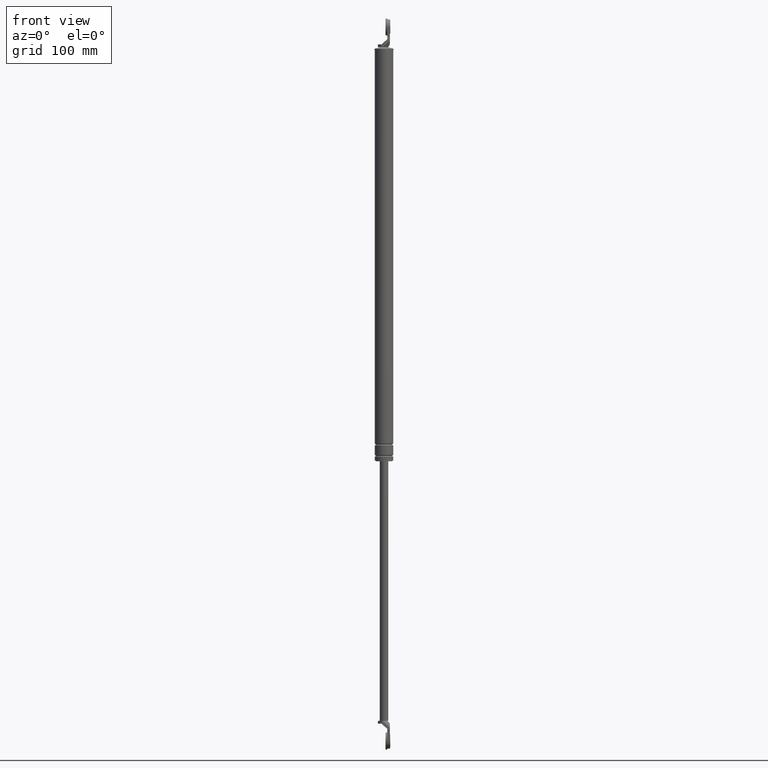
[diagram: clean part render]
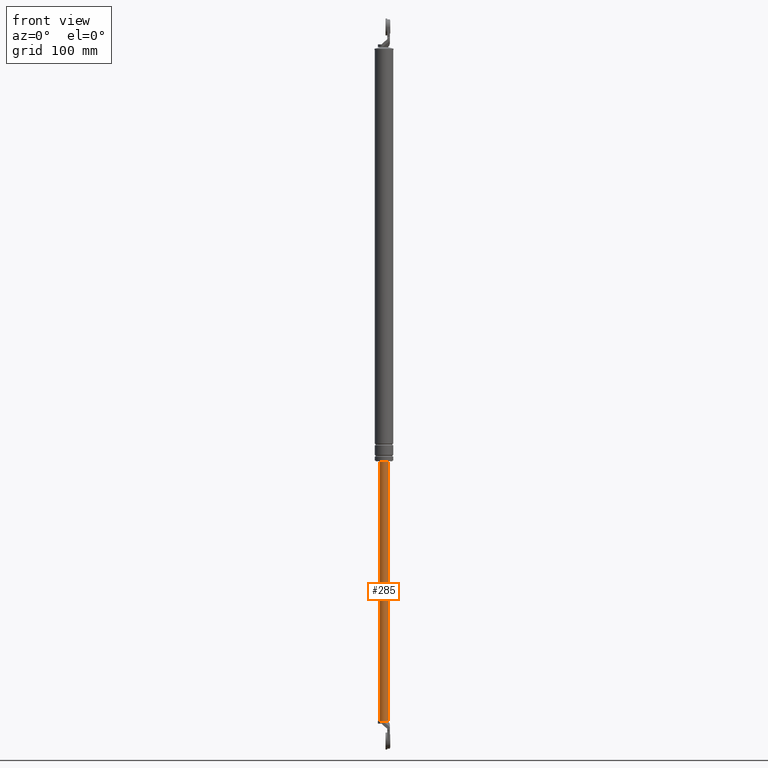
[diagram: same view with one face highlighted and labeled with its STEP entity id]
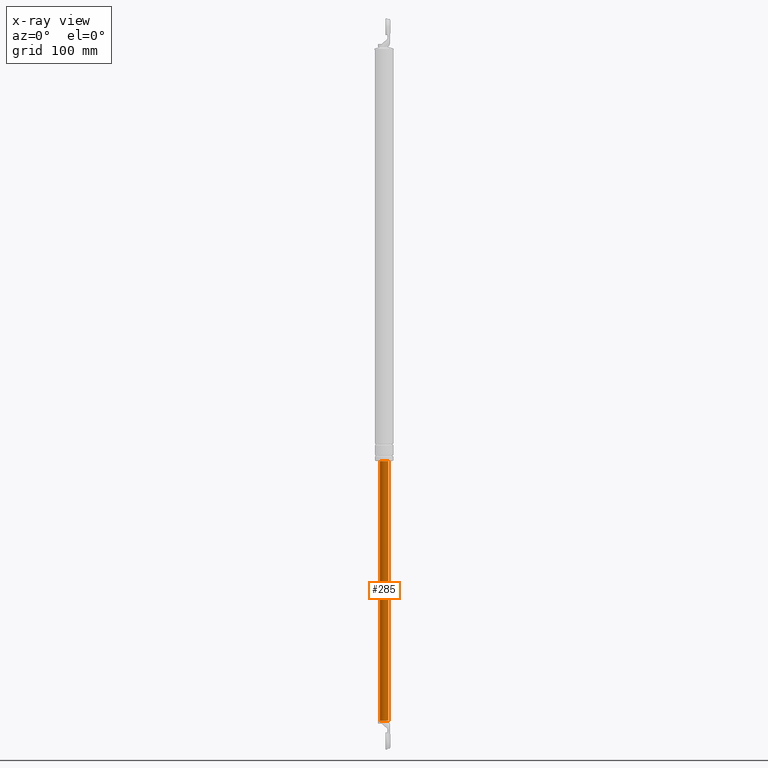
[diagram: x-ray of the same camera — body ghosted, the highlighted face saturated]
A machine part, front view. The second image highlights one B-rep face of the part: STEP entity #285.
The next image is the same camera in x-ray: the body ghosted, the highlighted face saturated — about 0% of this face is hidden behind the body in this view.
In plain terms, the highlighted cylindrical surface (edge-blend (fillet) strip) has radius 5 mm, axis along (0, 0, 1).
Its self-contained STEP definition (entity closure, byte-faithful):
#285=ADVANCED_FACE('',(#1108),#1107,.T.);
#1107=CYLINDRICAL_SURFACE('',#1762,5.00000000000E+000);
#1108=FACE_OUTER_BOUND('',#1763,.T.);
#1759=CARTESIAN_POINT('',(0.00000000000E+000,3.58204186421E-014,0.00000000000E+000));
#1760=DIRECTION('',(-0.00000000000E+000,-0.00000000000E+000,1.00000000000E+000));
#1761=DIRECTION('',(1.00000000000E+000,0.00000000000E+000,0.00000000000E+000));
#1762=AXIS2_PLACEMENT_3D('',#1759,#1760,#1761);
#1763=EDGE_LOOP('',(#2153,#2154,#2155,#2156,#2157));
#2153=ORIENTED_EDGE('',*,*,#2347,.F.);
#2154=ORIENTED_EDGE('',*,*,#2338,.F.);
#2155=ORIENTED_EDGE('',*,*,#2353,.T.);
#2156=ORIENTED_EDGE('',*,*,#2339,.F.);
#2157=ORIENTED_EDGE('',*,*,#2354,.F.);
#2338=EDGE_CURVE('',#3549,#3536,#3556,.T.);
#2339=EDGE_CURVE('',#3562,#3563,#3564,.T.);
#2347=EDGE_CURVE('',#3536,#3614,#3615,.T.);
#2353=EDGE_CURVE('',#3549,#3563,#3651,.T.);
#2354=EDGE_CURVE('',#3614,#3562,#3657,.T.);
#3536=VERTEX_POINT('',#4383);
#3549=VERTEX_POINT('',#4391);
#3556=CIRCLE('',#4399,5.00000000000E+000);
#3562=VERTEX_POINT('',#4400);
#3563=VERTEX_POINT('',#4401);
#3564=CIRCLE('',#4405,5.00000000000E+000);
#3614=VERTEX_POINT('',#4433);
#3615=CIRCLE('',#4437,5.00000000000E+000);
#3651=(BOUNDED_CURVE() B_SPLINE_CURVE(1,(#4453,#4454),.UNSPECIFIED.,.F.,.F.) B_SPLINE_CURVE_WITH_KNOTS((2,2),(3.03951368671E-002,9.69604863231E-001),.UNSPECIFIED.) CURVE() GEOMETRIC_REPRESENTATION_ITEM() RATIONAL_B_SPLINE_CURVE((1.00000000000E+000,1.00000000000E+000)) REPRESENTATION_ITEM('') );
#3657=(BOUNDED_CURVE() B_SPLINE_CURVE(1,(#4455,#4456),.UNSPECIFIED.,.F.,.F.) B_SPLINE_CURVE_WITH_KNOTS((2,2),(3.03951367781E-002,9.69604863222E-001),.UNSPECIFIED.) CURVE() GEOMETRIC_REPRESENTATION_ITEM() RATIONAL_B_SPLINE_CURVE((7.50000000000E-001,7.50000000000E-001)) REPRESENTATION_ITEM('') );
#4383=CARTESIAN_POINT('',(2.00000000000E+000,-4.58257569496E+000,-7.13000015000E+002));
#4391=CARTESIAN_POINT('',(5.00000000000E+000,-1.00795363079E-011,-7.13000015000E+002));
#4396=CARTESIAN_POINT('',(0.00000000000E+000,3.58204186421E-014,-7.13000015000E+002));
#4397=DIRECTION('',(0.00000000000E+000,0.00000000000E+000,-1.00000000000E+000));
#4398=DIRECTION('',(4.00000000000E-001,9.16515138991E-001,0.00000000000E+000));
#4399=AXIS2_PLACEMENT_3D('',#4396,#4397,#4398);
#4400=CARTESIAN_POINT('',(-5.00000000000E+000,3.58204186421E-014,-4.04000015000E+002));
#4401=CARTESIAN_POINT('',(5.00000000000E+000,3.61192557345E-014,-4.04000015000E+002));
#4402=CARTESIAN_POINT('',(0.00000000000E+000,3.58204186421E-014,-4.04000015000E+002));
#4403=DIRECTION('',(0.00000000000E+000,0.00000000000E+000,1.00000000000E+000));
#4404=DIRECTION('',(-1.00000000000E+000,-1.22460635382E-016,0.00000000000E+000));
#4405=AXIS2_PLACEMENT_3D('',#4402,#4403,#4404);
#4433=CARTESIAN_POINT('',(-5.00000000000E+000,8.97827335911E-007,-7.13000015000E+002));
#4434=CARTESIAN_POINT('',(0.00000000000E+000,3.58204186421E-014,-7.13000015000E+002));
#4435=DIRECTION('',(0.00000000000E+000,0.00000000000E+000,-1.00000000000E+000));
#4436=DIRECTION('',(1.00000000000E+000,-0.00000000000E+000,-0.00000000000E+000));
#4437=AXIS2_PLACEMENT_3D('',#4434,#4435,#4436);
#4453=CARTESIAN_POINT('',(5.00000000000E+000,3.58204186421E-014,-7.13000014971E+002));
#4454=CARTESIAN_POINT('',(5.00000000000E+000,3.58204186421E-014,-4.04000014997E+002));
#4455=CARTESIAN_POINT('',(-5.00000000000E+000,3.55271367880E-014,-7.13000015000E+002));
#4456=CARTESIAN_POINT('',(-5.00000000000E+000,3.55271367880E-014,-4.04000015000E+002));